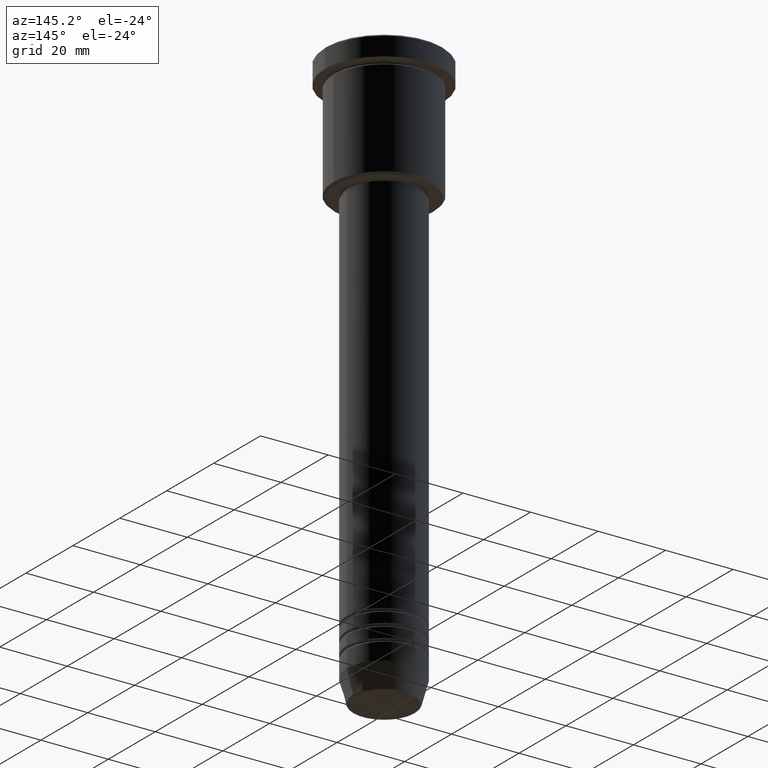
[diagram: clean part render]
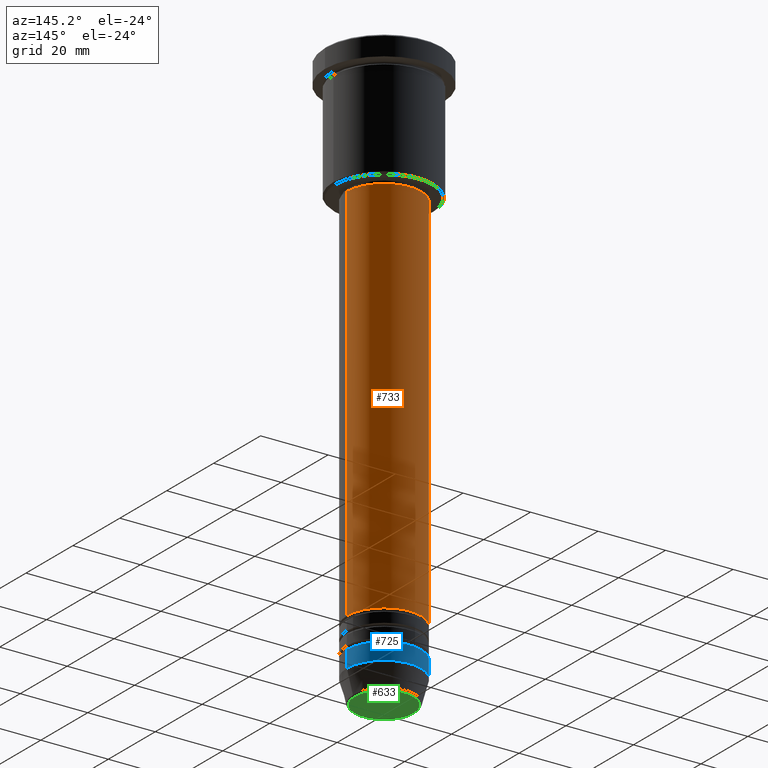
[diagram: same view with three faces highlighted in distinct colors, each labeled with its STEP entity id]
A machine part, auxiliary view with three faces highlighted in distinct colors.
Their STEP definitions:

[orange] entity #733 — the highlighted cylindrical surface (partial cylindrical patch) has radius 11 mm, axis along (-0, -0, 1).
#26 = DIRECTION ( 'NONE',  ( 1.000000000000000000, 0.000000000000000000, 0.000000000000000000 ) ) ;
#51 = CARTESIAN_POINT ( 'NONE',  ( 11.00000000000000000, 0.000000000000000000, 0.000000000000000000 ) ) ;
#77 = ORIENTED_EDGE ( 'NONE', *, *, #578, .T. ) ;
#115 = FACE_OUTER_BOUND ( 'NONE', #620, .T. ) ;
#143 = LINE ( 'NONE', #51, #533 ) ;
#186 = CARTESIAN_POINT ( 'NONE',  ( 11.00000000000000000, 0.000000000000000000, -37.00000000000002842 ) ) ;
#187 = CARTESIAN_POINT ( 'NONE',  ( 11.00000000000000000, 0.000000000000000000, -149.9999999999999147 ) ) ;
#236 = AXIS2_PLACEMENT_3D ( 'NONE', #1147, #867, #599 ) ;
#240 = DIRECTION ( 'NONE',  ( -0.000000000000000000, -0.000000000000000000, 1.000000000000000000 ) ) ;
#251 = VERTEX_POINT ( 'NONE', #829 ) ;
#271 = DIRECTION ( 'NONE',  ( -0.000000000000000000, -0.000000000000000000, 1.000000000000000000 ) ) ;
#319 = CARTESIAN_POINT ( 'NONE',  ( 0.000000000000000000, 0.000000000000000000, -37.00000000000002842 ) ) ;
#375 = EDGE_CURVE ( 'NONE', #1071, #251, #700, .T. ) ;
#434 = EDGE_CURVE ( 'NONE', #673, #1071, #143, .T. ) ;
#467 = DIRECTION ( 'NONE',  ( -0.000000000000000000, -0.000000000000000000, 1.000000000000000000 ) ) ;
#470 = CYLINDRICAL_SURFACE ( 'NONE', #236, 11.00000000000000000 ) ;
#533 = VECTOR ( 'NONE', #240, 1000.000000000000000 ) ;
#578 = EDGE_CURVE ( 'NONE', #857, #251, #981, .T. ) ;
#599 = DIRECTION ( 'NONE',  ( 1.000000000000000000, 0.000000000000000000, 0.000000000000000000 ) ) ;
#605 = EDGE_CURVE ( 'NONE', #673, #857, #862, .T. ) ;
#620 = EDGE_LOOP ( 'NONE', ( #754, #77, #1048, #1035 ) ) ;
#631 = CARTESIAN_POINT ( 'NONE',  ( 0.000000000000000000, 0.000000000000000000, -149.9999999999999147 ) ) ;
#673 = VERTEX_POINT ( 'NONE', #187 ) ;
#686 = CARTESIAN_POINT ( 'NONE',  ( -11.00000000000000000, 1.347111479062088405E-15, -149.9999999999999147 ) ) ;
#700 = CIRCLE ( 'NONE', #917, 11.00000000000000000 ) ;
#733 = ADVANCED_FACE ( 'NONE', ( #115 ), #470, .T. ) ;
#754 = ORIENTED_EDGE ( 'NONE', *, *, #605, .T. ) ;
#774 = DIRECTION ( 'NONE',  ( 1.000000000000000000, 0.000000000000000000, 0.000000000000000000 ) ) ;
#829 = CARTESIAN_POINT ( 'NONE',  ( -11.00000000000000000, 1.347111479062088405E-15, -37.00000000000002842 ) ) ;
#857 = VERTEX_POINT ( 'NONE', #686 ) ;
#862 = CIRCLE ( 'NONE', #881, 11.00000000000000000 ) ;
#867 = DIRECTION ( 'NONE',  ( -0.000000000000000000, -0.000000000000000000, 1.000000000000000000 ) ) ;
#881 = AXIS2_PLACEMENT_3D ( 'NONE', #631, #467, #26 ) ;
#917 = AXIS2_PLACEMENT_3D ( 'NONE', #319, #1134, #774 ) ;
#918 = VECTOR ( 'NONE', #271, 1000.000000000000000 ) ;
#981 = LINE ( 'NONE', #1085, #918 ) ;
#1035 = ORIENTED_EDGE ( 'NONE', *, *, #434, .F. ) ;
#1048 = ORIENTED_EDGE ( 'NONE', *, *, #375, .F. ) ;
#1071 = VERTEX_POINT ( 'NONE', #186 ) ;
#1085 = CARTESIAN_POINT ( 'NONE',  ( -11.00000000000000000, 1.347111479062088405E-15, 0.000000000000000000 ) ) ;
#1134 = DIRECTION ( 'NONE',  ( -0.000000000000000000, -0.000000000000000000, 1.000000000000000000 ) ) ;
#1147 = CARTESIAN_POINT ( 'NONE',  ( 0.000000000000000000, 0.000000000000000000, 0.000000000000000000 ) ) ;

[blue] entity #725 — the highlighted cylindrical surface (partial cylindrical patch) has radius 11 mm, axis along (-0, -0, 1).
#36 = EDGE_LOOP ( 'NONE', ( #504, #960, #731, #215 ) ) ;
#49 = CARTESIAN_POINT ( 'NONE',  ( 11.00000000000000000, 0.000000000000000000, -164.0000000000000284 ) ) ;
#87 = AXIS2_PLACEMENT_3D ( 'NONE', #1111, #298, #206 ) ;
#106 = LINE ( 'NONE', #932, #973 ) ;
#138 = CIRCLE ( 'NONE', #1074, 11.00000000000000000 ) ;
#139 = CIRCLE ( 'NONE', #553, 11.00000000000000000 ) ;
#206 = DIRECTION ( 'NONE',  ( 1.000000000000000000, 0.000000000000000000, 0.000000000000000000 ) ) ;
#215 = ORIENTED_EDGE ( 'NONE', *, *, #306, .F. ) ;
#226 = CARTESIAN_POINT ( 'NONE',  ( 11.00000000000000000, 0.000000000000000000, -159.0000000000000284 ) ) ;
#298 = DIRECTION ( 'NONE',  ( -0.000000000000000000, -0.000000000000000000, 1.000000000000000000 ) ) ;
#303 = CARTESIAN_POINT ( 'NONE',  ( 0.000000000000000000, 0.000000000000000000, -159.0000000000000284 ) ) ;
#306 = EDGE_CURVE ( 'NONE', #890, #874, #1123, .T. ) ;
#381 = FACE_OUTER_BOUND ( 'NONE', #36, .T. ) ;
#388 = DIRECTION ( 'NONE',  ( 1.000000000000000000, 0.000000000000000000, 0.000000000000000000 ) ) ;
#492 = VECTOR ( 'NONE', #1036, 1000.000000000000000 ) ;
#497 = DIRECTION ( 'NONE',  ( 1.000000000000000000, 0.000000000000000000, 0.000000000000000000 ) ) ;
#504 = ORIENTED_EDGE ( 'NONE', *, *, #866, .T. ) ;
#553 = AXIS2_PLACEMENT_3D ( 'NONE', #1040, #672, #497 ) ;
#648 = EDGE_CURVE ( 'NONE', #874, #661, #138, .T. ) ;
#661 = VERTEX_POINT ( 'NONE', #927 ) ;
#667 = EDGE_CURVE ( 'NONE', #1099, #661, #106, .T. ) ;
#672 = DIRECTION ( 'NONE',  ( -0.000000000000000000, -0.000000000000000000, 1.000000000000000000 ) ) ;
#725 = ADVANCED_FACE ( 'NONE', ( #381 ), #738, .T. ) ;
#731 = ORIENTED_EDGE ( 'NONE', *, *, #648, .F. ) ;
#738 = CYLINDRICAL_SURFACE ( 'NONE', #87, 11.00000000000000000 ) ;
#866 = EDGE_CURVE ( 'NONE', #890, #1099, #139, .T. ) ;
#874 = VERTEX_POINT ( 'NONE', #226 ) ;
#890 = VERTEX_POINT ( 'NONE', #49 ) ;
#925 = DIRECTION ( 'NONE',  ( -0.000000000000000000, -0.000000000000000000, 1.000000000000000000 ) ) ;
#927 = CARTESIAN_POINT ( 'NONE',  ( -11.00000000000000000, 1.347111479062088405E-15, -159.0000000000000284 ) ) ;
#932 = CARTESIAN_POINT ( 'NONE',  ( -11.00000000000000000, 1.347111479062088405E-15, 0.000000000000000000 ) ) ;
#935 = CARTESIAN_POINT ( 'NONE',  ( 11.00000000000000000, 0.000000000000000000, 0.000000000000000000 ) ) ;
#960 = ORIENTED_EDGE ( 'NONE', *, *, #667, .T. ) ;
#973 = VECTOR ( 'NONE', #1002, 1000.000000000000000 ) ;
#1002 = DIRECTION ( 'NONE',  ( -0.000000000000000000, -0.000000000000000000, 1.000000000000000000 ) ) ;
#1036 = DIRECTION ( 'NONE',  ( -0.000000000000000000, -0.000000000000000000, 1.000000000000000000 ) ) ;
#1040 = CARTESIAN_POINT ( 'NONE',  ( 0.000000000000000000, 0.000000000000000000, -164.0000000000000284 ) ) ;
#1074 = AXIS2_PLACEMENT_3D ( 'NONE', #303, #925, #388 ) ;
#1093 = CARTESIAN_POINT ( 'NONE',  ( -11.00000000000000000, 1.347111479062088405E-15, -164.0000000000000284 ) ) ;
#1099 = VERTEX_POINT ( 'NONE', #1093 ) ;
#1111 = CARTESIAN_POINT ( 'NONE',  ( 0.000000000000000000, 0.000000000000000000, 0.000000000000000000 ) ) ;
#1123 = LINE ( 'NONE', #935, #492 ) ;

[green] entity #633 — the highlighted planar face has unit normal (0, -0, 1).
#35 = DIRECTION ( 'NONE',  ( 0.000000000000000000, 0.000000000000000000, -1.000000000000000000 ) ) ;
#84 = EDGE_LOOP ( 'NONE', ( #253, #1041 ) ) ;
#253 = ORIENTED_EDGE ( 'NONE', *, *, #755, .T. ) ;
#267 = CARTESIAN_POINT ( 'NONE',  ( 8.740692158992656502, 0.000000000000000000, -171.0000000000000284 ) ) ;
#282 = DIRECTION ( 'NONE',  ( 1.000000000000000000, 0.000000000000000000, 0.000000000000000000 ) ) ;
#329 = CIRCLE ( 'NONE', #1072, 8.740692158992656502 ) ;
#396 = EDGE_CURVE ( 'NONE', #410, #526, #329, .T. ) ;
#409 = CARTESIAN_POINT ( 'NONE',  ( -8.740692158992656502, 1.099999016768739653E-15, -171.0000000000000284 ) ) ;
#410 = VERTEX_POINT ( 'NONE', #409 ) ;
#421 = AXIS2_PLACEMENT_3D ( 'NONE', #644, #832, #282 ) ;
#526 = VERTEX_POINT ( 'NONE', #267 ) ;
#535 = AXIS2_PLACEMENT_3D ( 'NONE', #853, #35, #1045 ) ;
#582 = CARTESIAN_POINT ( 'NONE',  ( 0.000000000000000000, 0.000000000000000000, -171.0000000000000284 ) ) ;
#633 = ADVANCED_FACE ( 'NONE', ( #1100 ), #914, .F. ) ;
#644 = CARTESIAN_POINT ( 'NONE',  ( 0.000000000000000000, 0.000000000000000000, -171.0000000000000284 ) ) ;
#755 = EDGE_CURVE ( 'NONE', #526, #410, #1051, .T. ) ;
#832 = DIRECTION ( 'NONE',  ( 0.000000000000000000, -0.000000000000000000, 1.000000000000000000 ) ) ;
#853 = CARTESIAN_POINT ( 'NONE',  ( 0.000000000000000000, 0.000000000000000000, -171.0000000000000284 ) ) ;
#868 = DIRECTION ( 'NONE',  ( 0.000000000000000000, 0.000000000000000000, -1.000000000000000000 ) ) ;
#914 = PLANE ( 'NONE',  #421 ) ;
#946 = DIRECTION ( 'NONE',  ( 1.000000000000000000, 0.000000000000000000, 0.000000000000000000 ) ) ;
#1041 = ORIENTED_EDGE ( 'NONE', *, *, #396, .T. ) ;
#1045 = DIRECTION ( 'NONE',  ( 1.000000000000000000, 0.000000000000000000, 0.000000000000000000 ) ) ;
#1051 = CIRCLE ( 'NONE', #535, 8.740692158992656502 ) ;
#1072 = AXIS2_PLACEMENT_3D ( 'NONE', #582, #868, #946 ) ;
#1100 = FACE_OUTER_BOUND ( 'NONE', #84, .T. ) ;